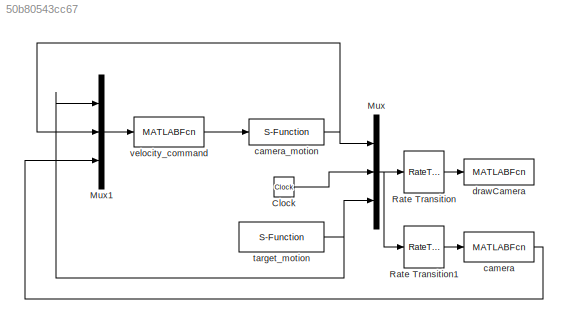
MODEL slx_50b80543cc67
KIND model
CONFIG AbsTol = auto
CONFIG FixedStep = 0.005
CONFIG InitFcn = param
CONFIG MaxStep = auto
CONFIG MinStep = auto
CONFIG RelTol = 1e-3
CONFIG SampleTimeConstraint = Unconstrained
CONFIG Solver = ode45
CONFIG SolverMode = Auto
CONFIG SolverName = ode45
CONFIG StartTime = 0.0
CONFIG StopTime = inf
BLOCK [Clock] Clock
BLOCK [Mux] Mux
  DisplayOption = bar
  Inputs = 3
  Ports = [3, 1]
BLOCK [Mux] Mux1
  DisplayOption = bar
  Inputs = 3
  Ports = [3, 1]
BLOCK [RateTransition] Rate Transition
  OutPortSampleTime = [0.05,0]
BLOCK [RateTransition] Rate Transition1
  OutPortSampleTime = [0.02,0]
BLOCK [MATLABFcn] camera
  MATLABFcn = camera(u,P)
  Ports = [1, 1]
BLOCK [S-Function] camera_motion
  EnableBusSupport = off
  FunctionName = camera_motion
  Parameters = P
  Ports = [1, 1]
  SFunctionDeploymentMode = off
BLOCK [MATLABFcn] drawCamera
  MATLABFcn = drawCamera(u,P)
  OutputDimensions = 0
  Ports = [1]
BLOCK [S-Function] target_motion
  EnableBusSupport = off
  FunctionName = target_motion
  Parameters = P
  Ports = [0, 1]
  SFunctionDeploymentMode = off
BLOCK [MATLABFcn] velocity_command
  MATLABFcn = velocity_command(u,P)
  OutputDimensions = 6
  Ports = [1, 1]
LINE Clock:1 -> Mux:2
LINE Mux1:1 -> velocity_command:1
NET Mux:1 -> Rate Transition1:1, Rate Transition:1
LINE Rate Transition1:1 -> camera:1
LINE Rate Transition:1 -> drawCamera:1
LINE camera:1 -> Mux1:3
NET camera_motion:1 -> Mux1:2, Mux:1
NET target_motion:1 -> Mux1:1, Mux:3
LINE velocity_command:1 -> camera_motion:1
note: NET lines group one-source signal fan-out (src -> all destinations, sorted); 1:1 wires keep LINE
